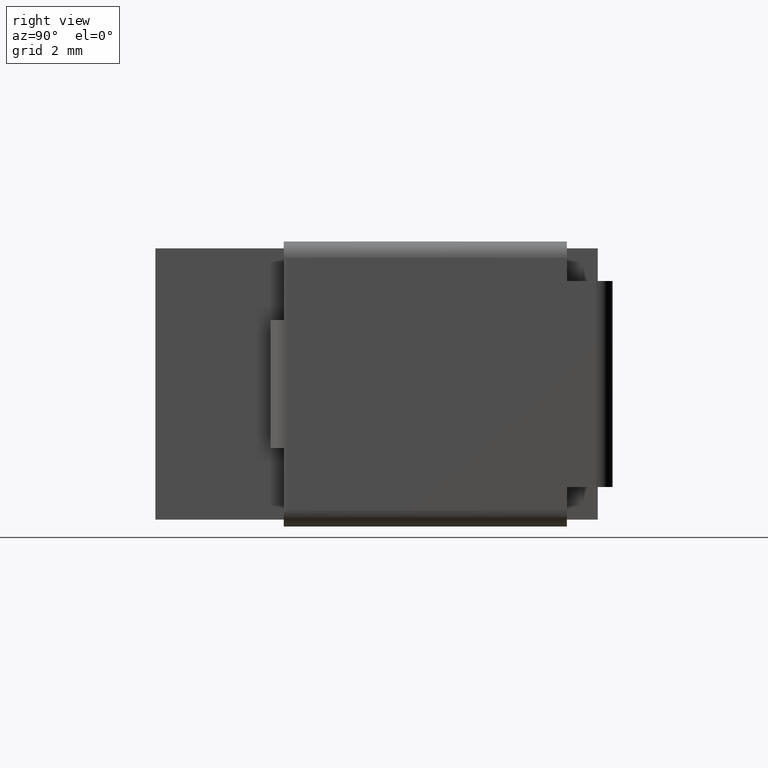
[diagram: clean part render]
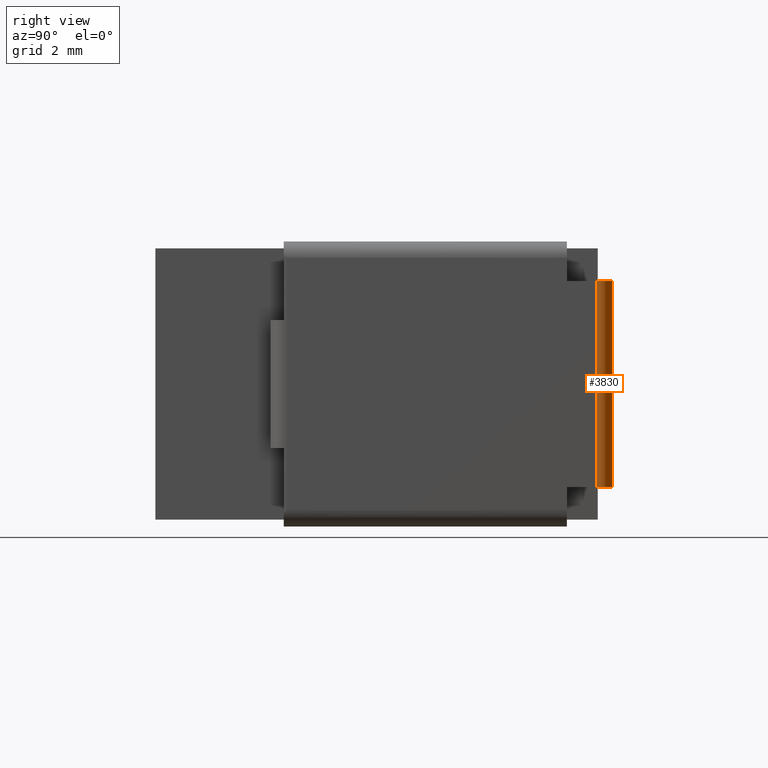
[diagram: same view with one face highlighted and labeled with its STEP entity id]
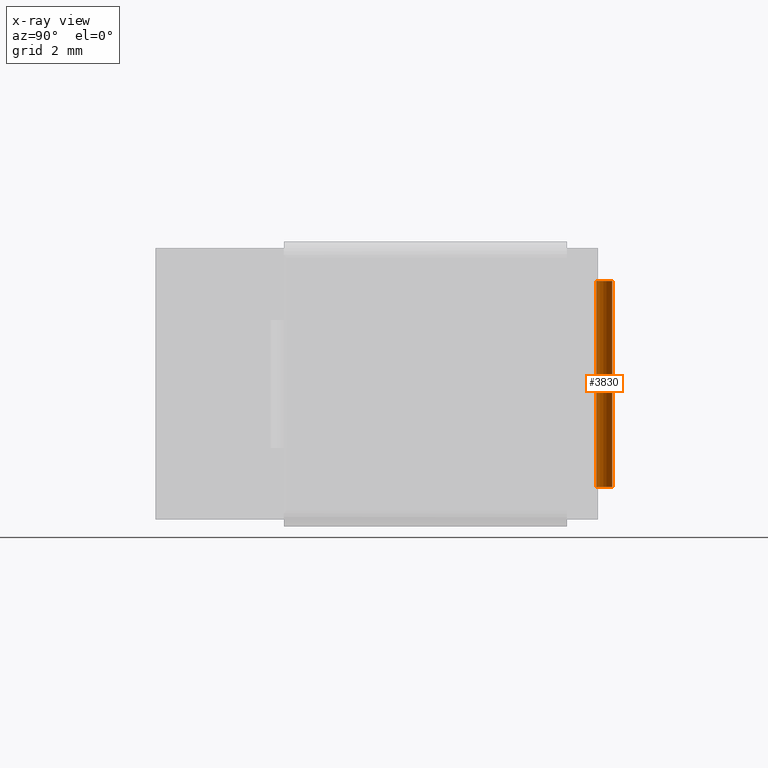
[diagram: x-ray of the same camera — body ghosted, the highlighted face saturated]
A machine part, right view. The second image highlights one B-rep face of the part: STEP entity #3830.
The next image is the same camera in x-ray: the body ghosted, the highlighted face saturated — about 0% of this face is hidden behind the body in this view.
In plain terms, the highlighted cylindrical surface (edge-blend (fillet) strip) has radius 0.342 mm, axis along (0, -0, 1).
Its self-contained STEP definition (entity closure, byte-faithful):
#10 = CARTESIAN_POINT ( 'NONE',  ( 9.557999999999998053, 9.611140200761150609, -5.016000000000000014 ) ) ;
#32 = CYLINDRICAL_SURFACE ( 'NONE', #2878, 0.3420000000000003038 ) ;
#56 = EDGE_CURVE ( 'NONE', #3123, #2041, #1604, .T. ) ;
#314 = EDGE_CURVE ( 'NONE', #1957, #1203, #2361, .T. ) ;
#359 = DIRECTION ( 'NONE',  ( 1.000000000000000000, 0.000000000000000000, 0.000000000000000000 ) ) ;
#374 = LINE ( 'NONE', #10, #3214 ) ;
#383 = DIRECTION ( 'NONE',  ( 0.000000000000000000, -0.000000000000000000, -1.000000000000000000 ) ) ;
#626 = EDGE_CURVE ( 'NONE', #2041, #1957, #679, .T. ) ;
#679 = LINE ( 'NONE', #2147, #1387 ) ;
#861 = EDGE_CURVE ( 'NONE', #1203, #3123, #374, .T. ) ;
#1038 = FACE_OUTER_BOUND ( 'NONE', #2229, .T. ) ;
#1193 = CARTESIAN_POINT ( 'NONE',  ( 9.557999999999998053, 9.611140200761150609, -5.016000000000000014 ) ) ;
#1203 = VERTEX_POINT ( 'NONE', #3245 ) ;
#1387 = VECTOR ( 'NONE', #3122, 1000.000000000000000 ) ;
#1455 = CARTESIAN_POINT ( 'NONE',  ( 9.557999999999998053, 9.269140200761151860, -0.6840000000000001634 ) ) ;
#1461 = DIRECTION ( 'NONE',  ( 1.000000000000000000, 0.000000000000000000, 0.000000000000000000 ) ) ;
#1545 = CARTESIAN_POINT ( 'NONE',  ( 9.899999999999998579, 9.269140200761151860, -0.6840000000000001634 ) ) ;
#1604 = CIRCLE ( 'NONE', #4208, 0.3420000000000003038 ) ;
#1614 = ORIENTED_EDGE ( 'NONE', *, *, #314, .F. ) ;
#1957 = VERTEX_POINT ( 'NONE', #1545 ) ;
#2041 = VERTEX_POINT ( 'NONE', #3160 ) ;
#2147 = CARTESIAN_POINT ( 'NONE',  ( 9.899999999999998579, 9.269140200761151860, -0.6840000000000001634 ) ) ;
#2229 = EDGE_LOOP ( 'NONE', ( #2944, #4148, #1614, #3276 ) ) ;
#2289 = AXIS2_PLACEMENT_3D ( 'NONE', #3244, #3200, #1461 ) ;
#2361 = CIRCLE ( 'NONE', #2289, 0.3420000000000003038 ) ;
#2863 = DIRECTION ( 'NONE',  ( 0.000000000000000000, -0.000000000000000000, 1.000000000000000000 ) ) ;
#2878 = AXIS2_PLACEMENT_3D ( 'NONE', #1455, #2863, #359 ) ;
#2944 = ORIENTED_EDGE ( 'NONE', *, *, #56, .F. ) ;
#3122 = DIRECTION ( 'NONE',  ( 0.000000000000000000, -0.000000000000000000, 1.000000000000000000 ) ) ;
#3123 = VERTEX_POINT ( 'NONE', #1193 ) ;
#3160 = CARTESIAN_POINT ( 'NONE',  ( 9.899999999999998579, 9.269140200761151860, -5.016000000000000014 ) ) ;
#3200 = DIRECTION ( 'NONE',  ( -0.000000000000000000, 0.000000000000000000, 1.000000000000000000 ) ) ;
#3214 = VECTOR ( 'NONE', #3854, 1000.000000000000000 ) ;
#3244 = CARTESIAN_POINT ( 'NONE',  ( 9.557999999999998053, 9.269140200761151860, -0.6840000000000001634 ) ) ;
#3245 = CARTESIAN_POINT ( 'NONE',  ( 9.557999999999998053, 9.611140200761150609, -0.6840000000000001634 ) ) ;
#3250 = DIRECTION ( 'NONE',  ( 1.000000000000000000, 0.000000000000000000, 0.000000000000000000 ) ) ;
#3276 = ORIENTED_EDGE ( 'NONE', *, *, #626, .F. ) ;
#3599 = CARTESIAN_POINT ( 'NONE',  ( 9.557999999999998053, 9.269140200761151860, -5.016000000000000014 ) ) ;
#3830 = ADVANCED_FACE ( 'NONE', ( #1038 ), #32, .T. ) ;
#3854 = DIRECTION ( 'NONE',  ( -0.000000000000000000, 0.000000000000000000, -1.000000000000000000 ) ) ;
#4148 = ORIENTED_EDGE ( 'NONE', *, *, #861, .F. ) ;
#4208 = AXIS2_PLACEMENT_3D ( 'NONE', #3599, #383, #3250 ) ;